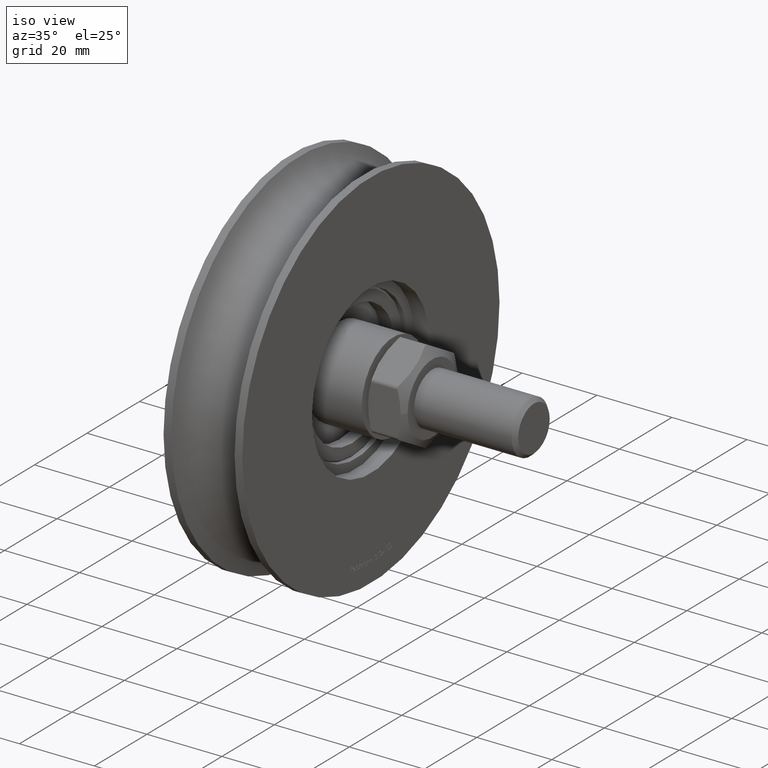
[diagram: clean part render]
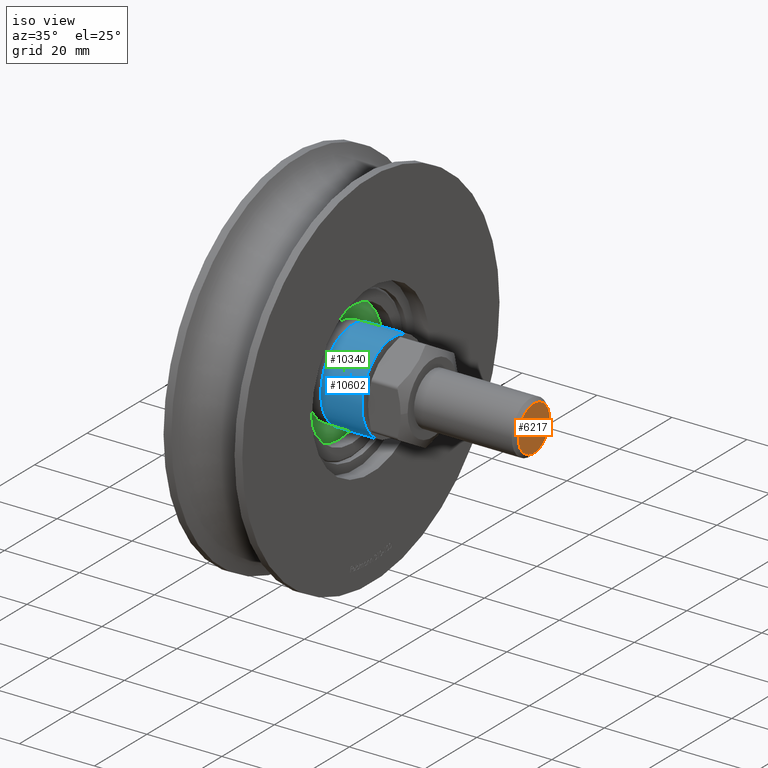
[diagram: same view with three faces highlighted in distinct colors, each labeled with its STEP entity id]
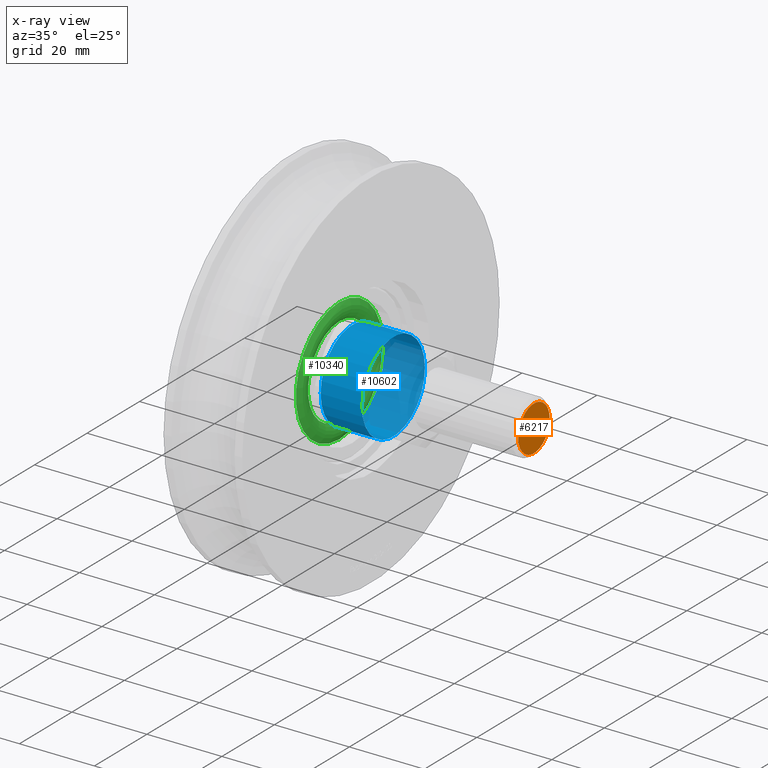
[diagram: x-ray of the same camera — body ghosted, the three highlighted faces saturated]
A machine part, iso view with three faces highlighted in distinct colors.
The next image is the same camera in x-ray (body ghosted, the three faces saturated) — at least one of them is partly hidden behind the body in this view.
Their STEP definitions:

[orange] entity #6217 — the highlighted planar face has unit normal (-1, 0, 0).
#1402 = EDGE_CURVE ( 'NONE', #8736, #8736, #9847, .T. ) ;
#1945 = DIRECTION ( 'NONE',  ( 0.000000000000000000, 1.000000000000000000, 0.000000000000000000 ) ) ;
#3970 = CARTESIAN_POINT ( 'NONE',  ( 0.000000000000000000, 0.000000000000000000, 0.000000000000000000 ) ) ;
#4492 = CARTESIAN_POINT ( 'NONE',  ( 0.000000000000000000, 0.000000000000000000, 0.000000000000000000 ) ) ;
#5053 = FACE_OUTER_BOUND ( 'NONE', #5458, .T. ) ;
#5403 = AXIS2_PLACEMENT_3D ( 'NONE', #3970, #1945, #9332 ) ;
#5458 = EDGE_LOOP ( 'NONE', ( #11328 ) ) ;
#5753 = AXIS2_PLACEMENT_3D ( 'NONE', #4492, #7618, #11969 ) ;
#6217 = ADVANCED_FACE ( 'NONE', ( #5053 ), #10313, .F. ) ;
#7618 = DIRECTION ( 'NONE',  ( -0.000000000000000000, -1.000000000000000000, -0.000000000000000000 ) ) ;
#8736 = VERTEX_POINT ( 'NONE', #11027 ) ;
#9332 = DIRECTION ( 'NONE',  ( 0.000000000000000000, -0.000000000000000000, 1.000000000000000000 ) ) ;
#9847 = CIRCLE ( 'NONE', #5753, 5.999999999999977796 ) ;
#10313 = PLANE ( 'NONE',  #5403 ) ;
#11027 = CARTESIAN_POINT ( 'NONE',  ( 0.000000000000000000, 0.000000000000000000, 5.999999999999977796 ) ) ;
#11328 = ORIENTED_EDGE ( 'NONE', *, *, #1402, .T. ) ;
#11969 = DIRECTION ( 'NONE',  ( 0.000000000000000000, 0.000000000000000000, 1.000000000000000000 ) ) ;

[blue] entity #10602 — the highlighted cylindrical surface (bore or boss wall) has radius 12 mm, axis along (1, 0, 0).
#102 = FACE_OUTER_BOUND ( 'NONE', #2166, .T. ) ;
#211 = CARTESIAN_POINT ( 'NONE',  ( 0.000000000000000000, 12.00000000000000000, 0.000000000000000000 ) ) ;
#409 = ORIENTED_EDGE ( 'NONE', *, *, #6048, .F. ) ;
#438 = AXIS2_PLACEMENT_3D ( 'NONE', #1158, #3119, #7409 ) ;
#1158 = CARTESIAN_POINT ( 'NONE',  ( 0.000000000000000000, 0.000000000000000000, 0.000000000000000000 ) ) ;
#2098 = CYLINDRICAL_SURFACE ( 'NONE', #438, 12.00000000000000000 ) ;
#2166 = EDGE_LOOP ( 'NONE', ( #8641 ) ) ;
#3119 = DIRECTION ( 'NONE',  ( -0.000000000000000000, 1.084202172485504187E-16, -1.000000000000000000 ) ) ;
#3529 = DIRECTION ( 'NONE',  ( 0.000000000000000000, 1.000000000000000000, 1.445602896647339410E-16 ) ) ;
#4792 = CARTESIAN_POINT ( 'NONE',  ( 0.000000000000000000, 1.410593220986744572E-31, -1.301042606982605124E-15 ) ) ;
#5372 = FACE_OUTER_BOUND ( 'NONE', #5510, .T. ) ;
#5510 = EDGE_LOOP ( 'NONE', ( #409 ) ) ;
#6048 = EDGE_CURVE ( 'NONE', #12543, #12543, #9528, .T. ) ;
#6977 = DIRECTION ( 'NONE',  ( -0.000000000000000000, 1.084202172485504187E-16, -1.000000000000000000 ) ) ;
#7000 = EDGE_CURVE ( 'NONE', #8097, #8097, #11865, .T. ) ;
#7409 = DIRECTION ( 'NONE',  ( 0.000000000000000000, 1.000000000000000000, 1.084202172485504311E-16 ) ) ;
#7694 = DIRECTION ( 'NONE',  ( -0.000000000000000000, 1.084202172485504187E-16, -1.000000000000000000 ) ) ;
#8097 = VERTEX_POINT ( 'NONE', #10881 ) ;
#8641 = ORIENTED_EDGE ( 'NONE', *, *, #7000, .T. ) ;
#9528 = CIRCLE ( 'NONE', #12527, 12.00000000000000000 ) ;
#10171 = DIRECTION ( 'NONE',  ( 0.000000000000000000, 1.000000000000000000, 1.084202172485504311E-16 ) ) ;
#10409 = AXIS2_PLACEMENT_3D ( 'NONE', #10953, #7694, #3529 ) ;
#10602 = ADVANCED_FACE ( 'NONE', ( #102, #5372 ), #2098, .T. ) ;
#10881 = CARTESIAN_POINT ( 'NONE',  ( 0.000000000000000000, 11.99999999999999645, 11.00000000000000000 ) ) ;
#10953 = CARTESIAN_POINT ( 'NONE',  ( 0.000000000000000000, -1.192622389734054286E-15, 10.99999999999999822 ) ) ;
#11865 = CIRCLE ( 'NONE', #10409, 11.99999999999999822 ) ;
#12527 = AXIS2_PLACEMENT_3D ( 'NONE', #4792, #6977, #10171 ) ;
#12543 = VERTEX_POINT ( 'NONE', #211 ) ;

[green] entity #10340 — the highlighted toroidal blend (fillet) surface has major radius 14.25 mm and minor (blend) radius 3.45 mm.
#118 = VERTEX_POINT ( 'NONE', #6749 ) ;
#693 = EDGE_CURVE ( 'NONE', #118, #118, #8062, .T. ) ;
#1396 = TOROIDAL_SURFACE ( 'NONE', #1951, 14.24999999999999822, 3.450000000000000178 ) ;
#1951 = AXIS2_PLACEMENT_3D ( 'NONE', #9256, #3087, #4007 ) ;
#1958 = AXIS2_PLACEMENT_3D ( 'NONE', #6105, #11451, #8295 ) ;
#2483 = DIRECTION ( 'NONE',  ( -1.000000000000000000, -0.000000000000000000, -0.000000000000000000 ) ) ;
#2639 = DIRECTION ( 'NONE',  ( 0.000000000000000000, 0.000000000000000000, 1.000000000000000000 ) ) ;
#3087 = DIRECTION ( 'NONE',  ( -1.000000000000000000, -0.000000000000000000, -0.000000000000000000 ) ) ;
#3737 = ORIENTED_EDGE ( 'NONE', *, *, #4218, .T. ) ;
#4007 = DIRECTION ( 'NONE',  ( 0.000000000000000000, 0.000000000000000000, 1.000000000000000000 ) ) ;
#4218 = EDGE_CURVE ( 'NONE', #5921, #5921, #11073, .T. ) ;
#4313 = ORIENTED_EDGE ( 'NONE', *, *, #693, .T. ) ;
#5007 = AXIS2_PLACEMENT_3D ( 'NONE', #6761, #2483, #2639 ) ;
#5921 = VERTEX_POINT ( 'NONE', #8898 ) ;
#6105 = CARTESIAN_POINT ( 'NONE',  ( 2.571478174124749660, 0.000000000000000000, 0.000000000000000000 ) ) ;
#6749 = CARTESIAN_POINT ( 'NONE',  ( 2.571478174124749660, 0.000000000000000000, 16.55000000000000782 ) ) ;
#6761 = CARTESIAN_POINT ( 'NONE',  ( 2.571478174124758542, 0.000000000000000000, 0.000000000000000000 ) ) ;
#7028 = FACE_OUTER_BOUND ( 'NONE', #9575, .T. ) ;
#8062 = CIRCLE ( 'NONE', #1958, 16.55000000000000782 ) ;
#8295 = DIRECTION ( 'NONE',  ( 0.000000000000000000, 0.000000000000000000, 1.000000000000000000 ) ) ;
#8734 = EDGE_LOOP ( 'NONE', ( #4313 ) ) ;
#8898 = CARTESIAN_POINT ( 'NONE',  ( 2.571478174124758542, 0.000000000000000000, 11.94999999999999929 ) ) ;
#9256 = CARTESIAN_POINT ( 'NONE',  ( 0.000000000000000000, 0.000000000000000000, 0.000000000000000000 ) ) ;
#9575 = EDGE_LOOP ( 'NONE', ( #3737 ) ) ;
#10340 = ADVANCED_FACE ( 'NONE', ( #10345, #7028 ), #1396, .T. ) ;
#10345 = FACE_OUTER_BOUND ( 'NONE', #8734, .T. ) ;
#11073 = CIRCLE ( 'NONE', #5007, 11.94999999999999929 ) ;
#11451 = DIRECTION ( 'NONE',  ( 1.000000000000000000, 0.000000000000000000, 0.000000000000000000 ) ) ;